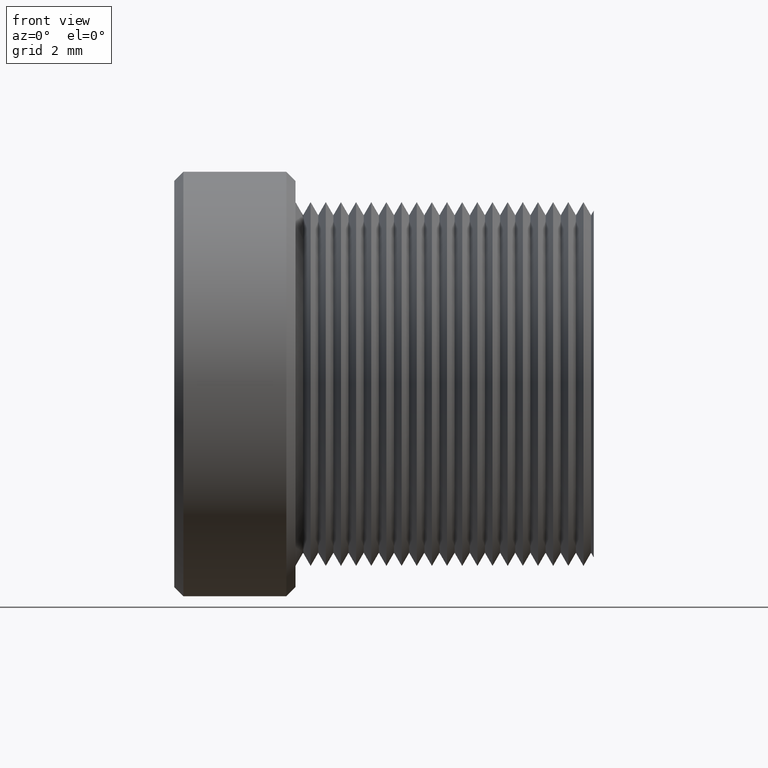
[diagram: clean part render]
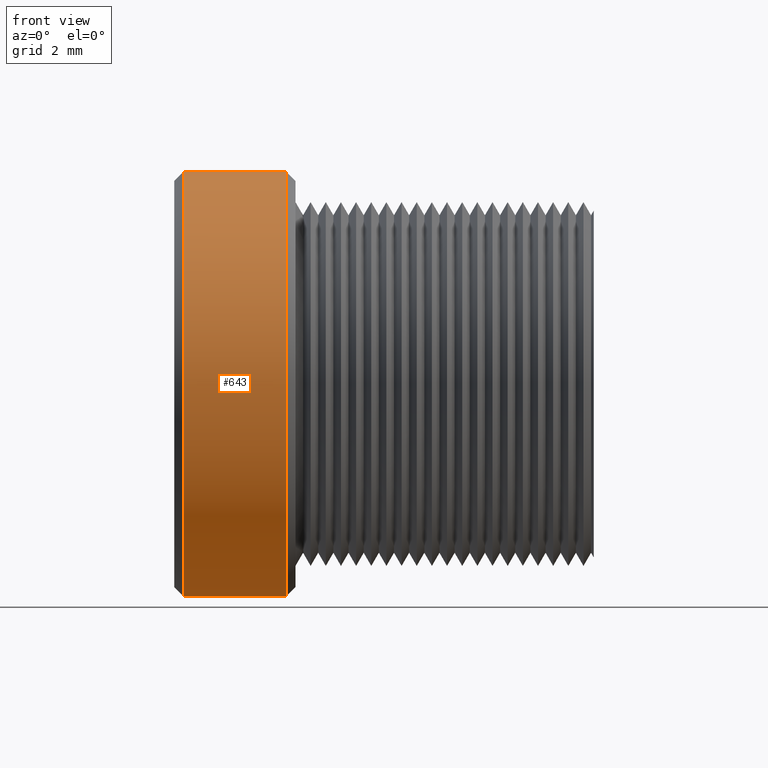
[diagram: same view with one face highlighted and labeled with its STEP entity id]
A machine part, front view. The second image highlights one B-rep face of the part: STEP entity #643.
In plain terms, the highlighted cylindrical surface (partial cylindrical patch) has radius 7 mm, axis along (-1, 0, 0).
Its self-contained STEP definition (entity closure, byte-faithful):
#33 = AXIS2_PLACEMENT_3D ( 'NONE', #2373, #1946, #1750 ) ;
#82 = CARTESIAN_POINT ( 'NONE',  ( -7.893366913450439171, 0.001652694072040714881, -6.999999804900060241 ) ) ;
#102 = LINE ( 'NONE', #82, #628 ) ;
#280 = CARTESIAN_POINT ( 'NONE',  ( -7.700000000000260414, -0.001652694071596630225, 6.999999804900060241 ) ) ;
#286 = CIRCLE ( 'NONE', #845, 6.999999999999896083 ) ;
#378 = DIRECTION ( 'NONE',  ( 0.000000000000000000, -0.0002360991531231236139, 0.9999999721285945942 ) ) ;
#444 = VERTEX_POINT ( 'NONE', #1555 ) ;
#582 = VECTOR ( 'NONE', #1102, 1000.000000000000000 ) ;
#628 = VECTOR ( 'NONE', #926, 1000.000000000000000 ) ;
#643 = ADVANCED_FACE ( 'NONE', ( #2382 ), #1418, .T. ) ;
#693 = DIRECTION ( 'NONE',  ( -1.000000000000000000, 0.000000000000000000, 0.000000000000000000 ) ) ;
#808 = VERTEX_POINT ( 'NONE', #280 ) ;
#842 = EDGE_CURVE ( 'NONE', #2078, #1954, #102, .T. ) ;
#845 = AXIS2_PLACEMENT_3D ( 'NONE', #1318, #693, #2122 ) ;
#910 = ORIENTED_EDGE ( 'NONE', *, *, #842, .F. ) ;
#926 = DIRECTION ( 'NONE',  ( -1.000000000000000000, 0.000000000000000000, 0.000000000000000000 ) ) ;
#983 = EDGE_CURVE ( 'NONE', #444, #808, #2499, .T. ) ;
#990 = EDGE_CURVE ( 'NONE', #1954, #808, #286, .T. ) ;
#1028 = ORIENTED_EDGE ( 'NONE', *, *, #990, .F. ) ;
#1102 = DIRECTION ( 'NONE',  ( -1.000000000000000000, 0.000000000000000000, 0.000000000000000000 ) ) ;
#1208 = CARTESIAN_POINT ( 'NONE',  ( -7.893366913450439171, 2.220446049250315100E-13, 5.421010862427519705E-17 ) ) ;
#1318 = CARTESIAN_POINT ( 'NONE',  ( -7.700000000000260414, 2.220446049250315100E-13, 5.421010862427519705E-17 ) ) ;
#1390 = AXIS2_PLACEMENT_3D ( 'NONE', #1208, #2190, #378 ) ;
#1418 = CYLINDRICAL_SURFACE ( 'NONE', #1390, 6.999999999999896083 ) ;
#1424 = CARTESIAN_POINT ( 'NONE',  ( -4.300000000000195222, 0.001652694072040714881, -6.999999804900060241 ) ) ;
#1475 = EDGE_CURVE ( 'NONE', #2078, #444, #1987, .T. ) ;
#1519 = CARTESIAN_POINT ( 'NONE',  ( -7.893366913450439171, -0.001652694071596630225, 6.999999804900060241 ) ) ;
#1555 = CARTESIAN_POINT ( 'NONE',  ( -4.300000000000195222, -0.001652694071596630225, 6.999999804900060241 ) ) ;
#1747 = CARTESIAN_POINT ( 'NONE',  ( -7.700000000000260414, 0.001652694072040714881, -6.999999804900060241 ) ) ;
#1750 = DIRECTION ( 'NONE',  ( 0.000000000000000000, -0.0002360991531231236139, 0.9999999721285945942 ) ) ;
#1946 = DIRECTION ( 'NONE',  ( -1.000000000000000000, 0.000000000000000000, 0.000000000000000000 ) ) ;
#1954 = VERTEX_POINT ( 'NONE', #1747 ) ;
#1987 = CIRCLE ( 'NONE', #33, 6.999999999999896083 ) ;
#2078 = VERTEX_POINT ( 'NONE', #1424 ) ;
#2088 = ORIENTED_EDGE ( 'NONE', *, *, #983, .T. ) ;
#2122 = DIRECTION ( 'NONE',  ( 0.000000000000000000, -0.0002360991531231236139, 0.9999999721285945942 ) ) ;
#2137 = EDGE_LOOP ( 'NONE', ( #910, #2542, #2088, #1028 ) ) ;
#2190 = DIRECTION ( 'NONE',  ( -1.000000000000000000, 0.000000000000000000, 0.000000000000000000 ) ) ;
#2373 = CARTESIAN_POINT ( 'NONE',  ( -4.300000000000195222, 2.220446049250315100E-13, 5.421010862427519705E-17 ) ) ;
#2382 = FACE_OUTER_BOUND ( 'NONE', #2137, .T. ) ;
#2499 = LINE ( 'NONE', #1519, #582 ) ;
#2542 = ORIENTED_EDGE ( 'NONE', *, *, #1475, .T. ) ;